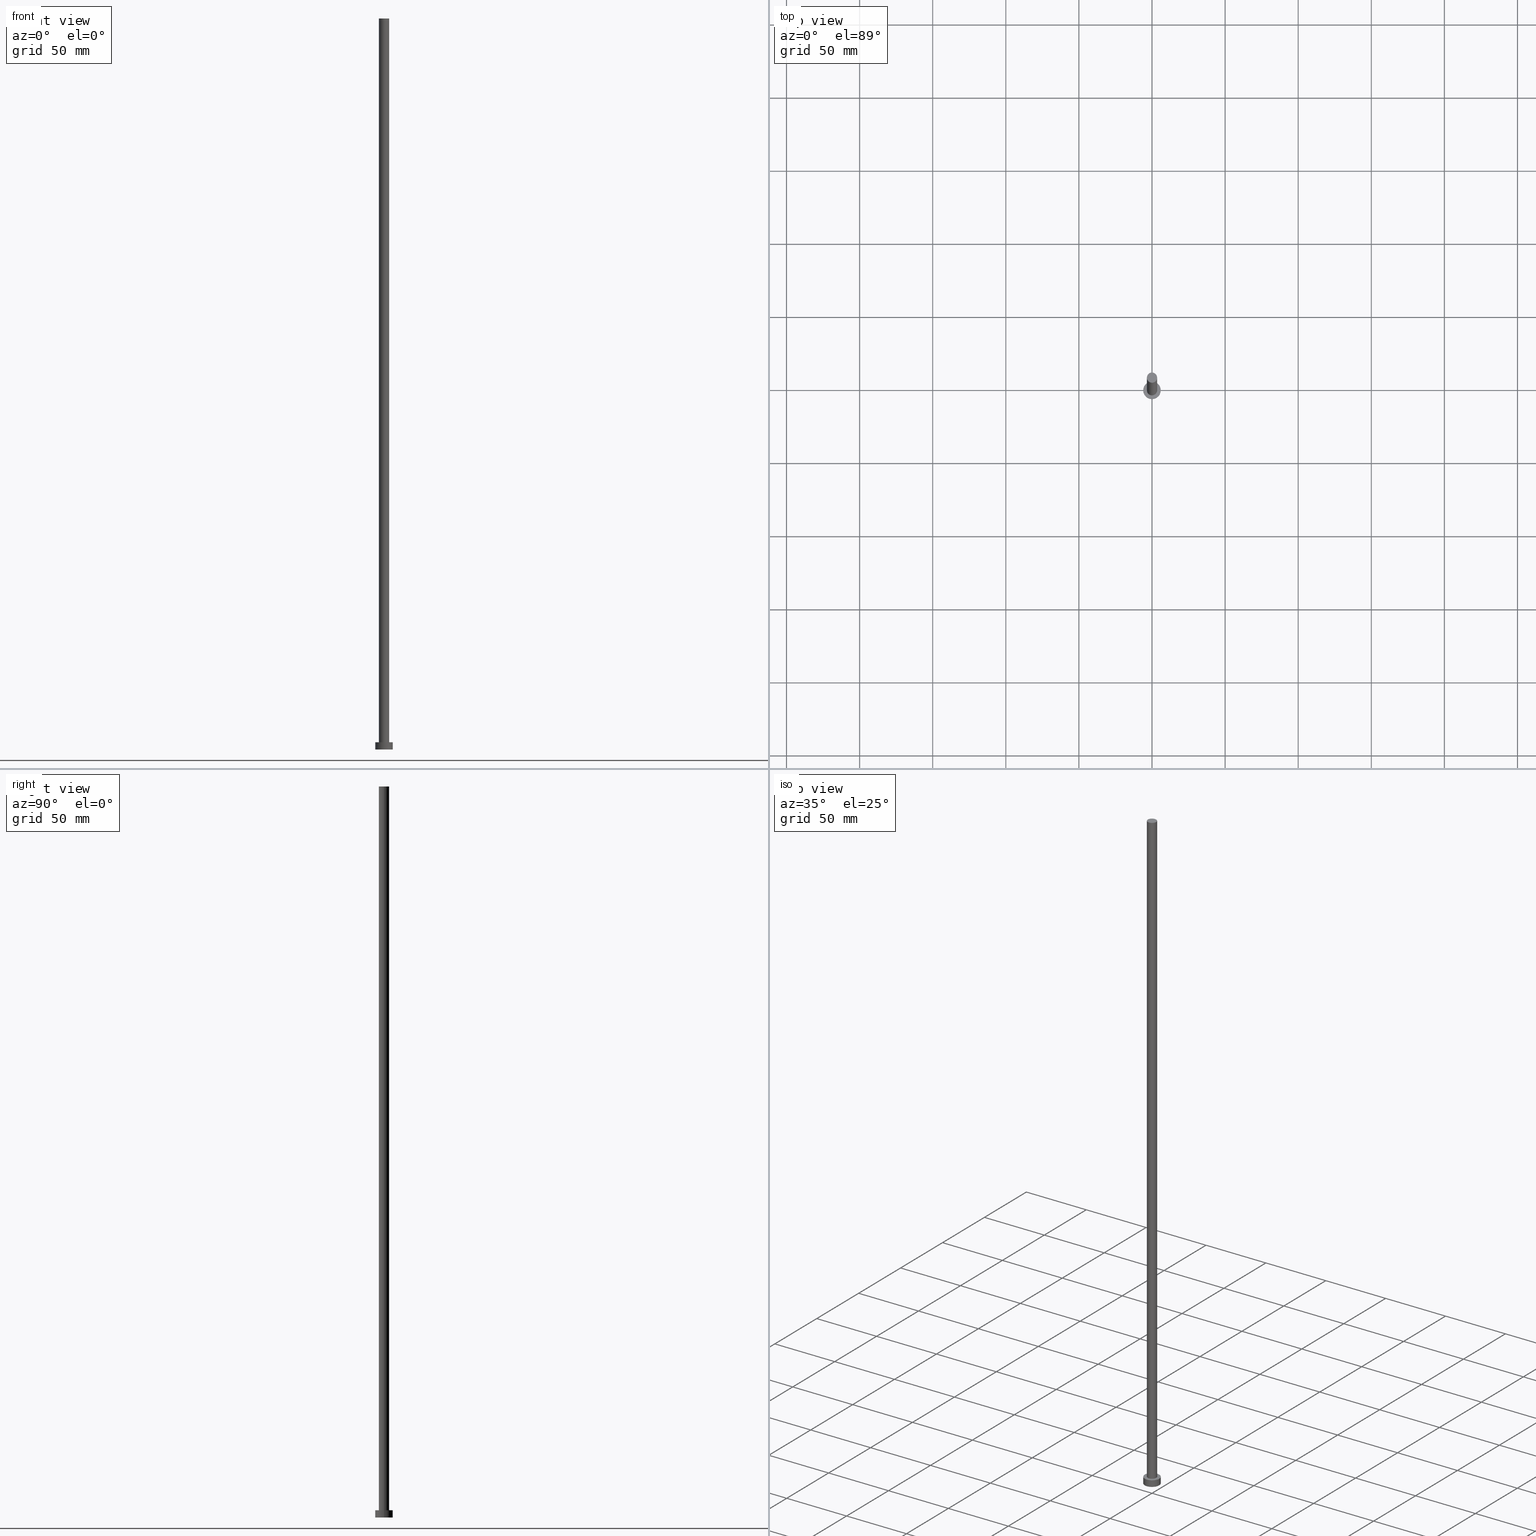
[diagram: canonical four-view strip — front | top / right | iso, engineering-drawing reading convention]
A machine part, canonical four-view strip (front | top / right | iso — engineering-drawing reading convention). The complete STEP part file that produces these views, byte-faithful:
ISO-10303-21;
HEADER;
FILE_DESCRIPTION (( 'STEP AP203' ),
    '1' );
FILE_NAME ('7057.STEP',
    '2026-02-06T12:39:42',
    ( '' ),
    ( '' ),
    'SwSTEP 2.0',
    'SolidWorks 2019',
    '' );
FILE_SCHEMA (( 'CONFIG_CONTROL_DESIGN' ));
ENDSEC;

DATA;
#1 = PLANE ( 'NONE',  #33 ) ;
#2 = CLOSED_SHELL ( 'NONE', ( #46, #175, #185, #170, #142, #118, #211 ) ) ;
#3 = DATE_AND_TIME ( #78, #235 ) ;
#4 = MECHANICAL_CONTEXT ( 'NONE', #204, 'mechanical' ) ;
#5 = EDGE_LOOP ( 'NONE', ( #193, #76 ) ) ;
#6 = APPROVAL_STATUS ( 'not_yet_approved' ) ;
#7 = DATE_AND_TIME ( #29, #205 ) ;
#8 = PRODUCT_DEFINITION ( 'NEZN�M�', '', #232, #15 ) ;
#9 = ORIENTED_EDGE ( 'NONE', *, *, #69, .T. ) ;
#10 = APPROVAL_DATE_TIME ( #187, #225 ) ;
#11 = DIRECTION ( 'NONE',  ( -0.000000000000000000, -0.000000000000000000, -1.000000000000000000 ) ) ;
#12 = APPROVAL_PERSON_ORGANIZATION ( #82, #125, #121 ) ;
#13 = DIRECTION ( 'NONE',  ( -0.000000000000000000, -0.000000000000000000, -1.000000000000000000 ) ) ;
#14 = CARTESIAN_POINT ( 'NONE',  ( 3.500000000000000000, 4.286263797015736595E-16, 500.0000000000000000 ) ) ;
#15 = DESIGN_CONTEXT ( 'detailed design', #89, 'design' ) ;
#16 = DIRECTION ( 'NONE',  ( 1.000000000000000000, 0.000000000000000000, 0.000000000000000000 ) ) ;
#17 = CARTESIAN_POINT ( 'NONE',  ( 0.000000000000000000, 0.000000000000000000, 0.000000000000000000 ) ) ;
#18 = VECTOR ( 'NONE', #105, 1000.000000000000000 ) ;
#19 = DIRECTION ( 'NONE',  ( 0.000000000000000000, 0.000000000000000000, 1.000000000000000000 ) ) ;
#20 = VECTOR ( 'NONE', #38, 1000.000000000000000 ) ;
#21 = DIRECTION ( 'NONE',  ( 0.000000000000000000, 0.000000000000000000, 1.000000000000000000 ) ) ;
#22 = ORIENTED_EDGE ( 'NONE', *, *, #75, .F. ) ;
#23 = VERTEX_POINT ( 'NONE', #203 ) ;
#24 = EDGE_LOOP ( 'NONE', ( #64, #144, #28, #180 ) ) ;
#25 = APPLICATION_PROTOCOL_DEFINITION ( 'international standard', 'config_control_design', 1994, #89 ) ;
#26 = PRODUCT_DEFINITION_SHAPE ( 'NONE', 'NONE',  #8 ) ;
#27 = PERSON_AND_ORGANIZATION ( #156, #247 ) ;
#28 = ORIENTED_EDGE ( 'NONE', *, *, #75, .T. ) ;
#29 = CALENDAR_DATE ( 2026, 6, 2 ) ;
#30 = AXIS2_PLACEMENT_3D ( 'NONE', #124, #131, #190 ) ;
#31 = CARTESIAN_POINT ( 'NONE',  ( 6.000000000000000888, 7.347880794884120722E-16, 5.000000000000000000 ) ) ;
#32 = CYLINDRICAL_SURFACE ( 'NONE', #216, 6.000000000000000888 ) ;
#33 = AXIS2_PLACEMENT_3D ( 'NONE', #40, #19, #111 ) ;
#34 = AXIS2_PLACEMENT_3D ( 'NONE', #220, #115, #48 ) ;
#35 = EDGE_CURVE ( 'NONE', #74, #23, #164, .T. ) ;
#36 = DIRECTION ( 'NONE',  ( 0.000000000000000000, 0.000000000000000000, 1.000000000000000000 ) ) ;
#37 = LINE ( 'NONE', #85, #248 ) ;
#38 = DIRECTION ( 'NONE',  ( -0.000000000000000000, -0.000000000000000000, -1.000000000000000000 ) ) ;
#39 = CARTESIAN_POINT ( 'NONE',  ( -6.000000000000000888, 0.000000000000000000, 5.000000000000000000 ) ) ;
#40 = CARTESIAN_POINT ( 'NONE',  ( 0.000000000000000000, 0.000000000000000000, 500.0000000000000000 ) ) ;
#41 = CC_DESIGN_PERSON_AND_ORGANIZATION_ASSIGNMENT ( #117, #96, ( #186 ) ) ;
#42 = CIRCLE ( 'NONE', #101, 6.000000000000000888 ) ;
#43 = EDGE_LOOP ( 'NONE', ( #138, #44, #171, #155 ) ) ;
#44 = ORIENTED_EDGE ( 'NONE', *, *, #59, .F. ) ;
#45 = DIRECTION ( 'NONE',  ( 0.000000000000000000, 0.000000000000000000, 1.000000000000000000 ) ) ;
#46 = ADVANCED_FACE ( 'NONE', ( #108 ), #206, .T. ) ;
#47 =( LENGTH_UNIT ( ) NAMED_UNIT ( * ) SI_UNIT ( .MILLI., .METRE. ) );
#48 = DIRECTION ( 'NONE',  ( 1.000000000000000000, 0.000000000000000000, 0.000000000000000000 ) ) ;
#49 = COORDINATED_UNIVERSAL_TIME_OFFSET ( 1, 0, .AHEAD. ) ;
#50 = DATE_TIME_ROLE ( 'classification_date' ) ;
#51 = CIRCLE ( 'NONE', #60, 3.500000000000000000 ) ;
#52 = CARTESIAN_POINT ( 'NONE',  ( -6.000000000000000888, 0.000000000000000000, 0.000000000000000000 ) ) ;
#53 = DIRECTION ( 'NONE',  ( 1.000000000000000000, 0.000000000000000000, -0.000000000000000000 ) ) ;
#54 = CARTESIAN_POINT ( 'NONE',  ( 0.000000000000000000, 0.000000000000000000, 500.0000000000000000 ) ) ;
#55 = CARTESIAN_POINT ( 'NONE',  ( 0.000000000000000000, 0.000000000000000000, 5.000000000000000000 ) ) ;
#56 = DIRECTION ( 'NONE',  ( -1.000000000000000000, 0.000000000000000000, 0.000000000000000000 ) ) ;
#57 = EDGE_CURVE ( 'NONE', #99, #214, #150, .T. ) ;
#58 = VERTEX_POINT ( 'NONE', #52 ) ;
#59 = EDGE_CURVE ( 'NONE', #237, #99, #42, .T. ) ;
#60 = AXIS2_PLACEMENT_3D ( 'NONE', #148, #107, #16 ) ;
#61 = APPROVAL_ROLE ( '' ) ;
#62 = CC_DESIGN_PERSON_AND_ORGANIZATION_ASSIGNMENT ( #27, #244, ( #232 ) ) ;
#63 = SECURITY_CLASSIFICATION ( '', '', #241 ) ;
#64 = ORIENTED_EDGE ( 'NONE', *, *, #230, .F. ) ;
#65 = PERSON_AND_ORGANIZATION_ROLE ( 'design_supplier' ) ;
#66 = EDGE_CURVE ( 'NONE', #120, #93, #189, .T. ) ;
#67 = DIRECTION ( 'NONE',  ( 0.000000000000000000, 0.000000000000000000, 1.000000000000000000 ) ) ;
#68 = CARTESIAN_POINT ( 'NONE',  ( 0.000000000000000000, 0.000000000000000000, 500.0000000000000000 ) ) ;
#69 = EDGE_CURVE ( 'NONE', #99, #237, #159, .T. ) ;
#70 = DIRECTION ( 'NONE',  ( -0.000000000000000000, -0.000000000000000000, -1.000000000000000000 ) ) ;
#71 = CARTESIAN_POINT ( 'NONE',  ( 0.000000000000000000, 0.000000000000000000, 5.000000000000000000 ) ) ;
#72 = AXIS2_PLACEMENT_3D ( 'NONE', #234, #113, #195 ) ;
#73 = CARTESIAN_POINT ( 'NONE',  ( -3.500000000000000000, 0.000000000000000000, 500.0000000000000000 ) ) ;
#74 = VERTEX_POINT ( 'NONE', #130 ) ;
#75 = EDGE_CURVE ( 'NONE', #23, #93, #51, .T. ) ;
#76 = ORIENTED_EDGE ( 'NONE', *, *, #230, .T. ) ;
#77 = DIRECTION ( 'NONE',  ( 1.000000000000000000, 0.000000000000000000, 0.000000000000000000 ) ) ;
#78 = CALENDAR_DATE ( 2026, 6, 2 ) ;
#79 = DATE_AND_TIME ( #196, #100 ) ;
#80 = PERSON_AND_ORGANIZATION ( #156, #247 ) ;
#81 = ORIENTED_EDGE ( 'NONE', *, *, #66, .T. ) ;
#82 = PERSON_AND_ORGANIZATION ( #156, #247 ) ;
#83 = SHAPE_DEFINITION_REPRESENTATION ( #26, #229 ) ;
#84 = CYLINDRICAL_SURFACE ( 'NONE', #132, 3.500000000000000000 ) ;
#85 = CARTESIAN_POINT ( 'NONE',  ( -6.000000000000000888, 0.000000000000000000, 5.000000000000000000 ) ) ;
#86 = CC_DESIGN_PERSON_AND_ORGANIZATION_ASSIGNMENT ( #80, #143, ( #8 ) ) ;
#87 = DIRECTION ( 'NONE',  ( 0.000000000000000000, 0.000000000000000000, 1.000000000000000000 ) ) ;
#88 = DIRECTION ( 'NONE',  ( -1.000000000000000000, 0.000000000000000000, 0.000000000000000000 ) ) ;
#89 = APPLICATION_CONTEXT ( 'configuration controlled 3d designs of mechanical parts and assemblies' ) ;
#90 = ORIENTED_EDGE ( 'NONE', *, *, #202, .T. ) ;
#91 = CIRCLE ( 'NONE', #173, 3.500000000000000000 ) ;
#92 = DIRECTION ( 'NONE',  ( 1.000000000000000000, 0.000000000000000000, 0.000000000000000000 ) ) ;
#93 = VERTEX_POINT ( 'NONE', #207 ) ;
#94 = APPROVAL_DATE_TIME ( #198, #125 ) ;
#95 = ORIENTED_EDGE ( 'NONE', *, *, #202, .F. ) ;
#96 = PERSON_AND_ORGANIZATION_ROLE ( 'design_owner' ) ;
#97 =( NAMED_UNIT ( * ) PLANE_ANGLE_UNIT ( ) SI_UNIT ( $, .RADIAN. ) );
#98 = EDGE_CURVE ( 'NONE', #120, #74, #147, .T. ) ;
#99 = VERTEX_POINT ( 'NONE', #246 ) ;
#100 = LOCAL_TIME ( 13, 39, 42.00000000000000000, #221 ) ;
#101 = AXIS2_PLACEMENT_3D ( 'NONE', #149, #87, #127 ) ;
#102 = COORDINATED_UNIVERSAL_TIME_OFFSET ( 1, 0, .AHEAD. ) ;
#103 = DIRECTION ( 'NONE',  ( 1.000000000000000000, 0.000000000000000000, 0.000000000000000000 ) ) ;
#104 = AXIS2_PLACEMENT_3D ( 'NONE', #55, #231, #56 ) ;
#105 = DIRECTION ( 'NONE',  ( -0.000000000000000000, -0.000000000000000000, -1.000000000000000000 ) ) ;
#106 = CIRCLE ( 'NONE', #182, 6.000000000000000888 ) ;
#107 = DIRECTION ( 'NONE',  ( 0.000000000000000000, 0.000000000000000000, 1.000000000000000000 ) ) ;
#108 = FACE_OUTER_BOUND ( 'NONE', #24, .T. ) ;
#109 = FACE_OUTER_BOUND ( 'NONE', #114, .T. ) ;
#110 = CARTESIAN_POINT ( 'NONE',  ( 0.000000000000000000, 0.000000000000000000, 0.000000000000000000 ) ) ;
#111 = DIRECTION ( 'NONE',  ( 1.000000000000000000, 0.000000000000000000, -0.000000000000000000 ) ) ;
#112 = EDGE_LOOP ( 'NONE', ( #136, #183, #90, #153 ) ) ;
#113 = DIRECTION ( 'NONE',  ( 0.000000000000000000, 0.000000000000000000, 1.000000000000000000 ) ) ;
#114 = EDGE_LOOP ( 'NONE', ( #176, #95 ) ) ;
#115 = DIRECTION ( 'NONE',  ( 0.000000000000000000, 0.000000000000000000, 1.000000000000000000 ) ) ;
#116 = ORIENTED_EDGE ( 'NONE', *, *, #219, .F. ) ;
#117 = PERSON_AND_ORGANIZATION ( #156, #247 ) ;
#118 = ADVANCED_FACE ( 'NONE', ( #228 ), #84, .T. ) ;
#119 = CALENDAR_DATE ( 2026, 6, 2 ) ;
#120 = VERTEX_POINT ( 'NONE', #188 ) ;
#121 = APPROVAL_ROLE ( '' ) ;
#122 = LOCAL_TIME ( 13, 39, 42.00000000000000000, #102 ) ;
#123 = PERSON_AND_ORGANIZATION ( #156, #247 ) ;
#124 = CARTESIAN_POINT ( 'NONE',  ( 0.000000000000000000, 0.000000000000000000, 5.000000000000000000 ) ) ;
#125 = APPROVAL ( #218, 'NEUR�EN�' ) ;
#126 = FACE_OUTER_BOUND ( 'NONE', #199, .T. ) ;
#127 = DIRECTION ( 'NONE',  ( 1.000000000000000000, 0.000000000000000000, 0.000000000000000000 ) ) ;
#128 = CC_DESIGN_APPROVAL ( #225, ( #63 ) ) ;
#129 = AXIS2_PLACEMENT_3D ( 'NONE', #249, #70, #208 ) ;
#130 = CARTESIAN_POINT ( 'NONE',  ( 3.500000000000000000, 4.286263797015736595E-16, 500.0000000000000000 ) ) ;
#131 = DIRECTION ( 'NONE',  ( 0.000000000000000000, 0.000000000000000000, 1.000000000000000000 ) ) ;
#132 = AXIS2_PLACEMENT_3D ( 'NONE', #68, #224, #88 ) ;
#133 = DIRECTION ( 'NONE',  ( 0.000000000000000000, 0.000000000000000000, 1.000000000000000000 ) ) ;
#134 = CC_DESIGN_DATE_AND_TIME_ASSIGNMENT ( #79, #157, ( #8 ) ) ;
#135 = UNCERTAINTY_MEASURE_WITH_UNIT (LENGTH_MEASURE( 1.000000000000000082E-05 ), #47, 'distance_accuracy_value', 'NONE');
#136 = ORIENTED_EDGE ( 'NONE', *, *, #69, .F. ) ;
#137 = EDGE_CURVE ( 'NONE', #237, #58, #37, .T. ) ;
#138 = ORIENTED_EDGE ( 'NONE', *, *, #57, .F. ) ;
#139 = APPROVAL_DATE_TIME ( #7, #172 ) ;
#140 = EDGE_LOOP ( 'NONE', ( #116, #22 ) ) ;
#141 = APPROVAL_STATUS ( 'not_yet_approved' ) ;
#142 = ADVANCED_FACE ( 'NONE', ( #109 ), #253, .F. ) ;
#143 = PERSON_AND_ORGANIZATION_ROLE ( 'creator' ) ;
#144 = ORIENTED_EDGE ( 'NONE', *, *, #35, .T. ) ;
#145 = FACE_OUTER_BOUND ( 'NONE', #112, .T. ) ;
#146 = PRODUCT_RELATED_PRODUCT_CATEGORY ( 'detail', '', ( #186 ) ) ;
#147 = CIRCLE ( 'NONE', #177, 3.500000000000000000 ) ;
#148 = CARTESIAN_POINT ( 'NONE',  ( 0.000000000000000000, 0.000000000000000000, 5.000000000000000000 ) ) ;
#149 = CARTESIAN_POINT ( 'NONE',  ( 0.000000000000000000, 0.000000000000000000, 5.000000000000000000 ) ) ;
#150 = LINE ( 'NONE', #31, #20 ) ;
#151 = CYLINDRICAL_SURFACE ( 'NONE', #104, 6.000000000000000888 ) ;
#152 = APPROVAL_PERSON_ORGANIZATION ( #123, #225, #61 ) ;
#153 = ORIENTED_EDGE ( 'NONE', *, *, #137, .F. ) ;
#154 = DIRECTION ( 'NONE',  ( 1.000000000000000000, 0.000000000000000000, 0.000000000000000000 ) ) ;
#155 = ORIENTED_EDGE ( 'NONE', *, *, #243, .T. ) ;
#156 = PERSON ( 'NEUR�EN�', 'NEUR�EN�', 'NEUR�EN�', ('NEUR�EN�'), ('NEUR�EN�'), ('NEUR�EN�') ) ;
#157 = DATE_TIME_ROLE ( 'creation_date' ) ;
#158 =( GEOMETRIC_REPRESENTATION_CONTEXT ( 3 ) GLOBAL_UNCERTAINTY_ASSIGNED_CONTEXT ( ( #135 ) ) GLOBAL_UNIT_ASSIGNED_CONTEXT ( ( #47, #97, #215 ) ) REPRESENTATION_CONTEXT ( 'NONE', 'WORKASPACE' ) );
#159 = CIRCLE ( 'NONE', #30, 6.000000000000000888 ) ;
#160 = PERSON_AND_ORGANIZATION ( #156, #247 ) ;
#161 = ORIENTED_EDGE ( 'NONE', *, *, #219, .T. ) ;
#162 = DIRECTION ( 'NONE',  ( 0.000000000000000000, 0.000000000000000000, 1.000000000000000000 ) ) ;
#163 = CC_DESIGN_APPROVAL ( #125, ( #232 ) ) ;
#164 = LINE ( 'NONE', #14, #236 ) ;
#165 = AXIS2_PLACEMENT_3D ( 'NONE', #17, #162, #53 ) ;
#166 = DIRECTION ( 'NONE',  ( -1.000000000000000000, 0.000000000000000000, 0.000000000000000000 ) ) ;
#167 = DIRECTION ( 'NONE',  ( 1.000000000000000000, 0.000000000000000000, -0.000000000000000000 ) ) ;
#168 = DIRECTION ( 'NONE',  ( -0.000000000000000000, -0.000000000000000000, -1.000000000000000000 ) ) ;
#169 = CC_DESIGN_APPROVAL ( #172, ( #8 ) ) ;
#170 = ADVANCED_FACE ( 'NONE', ( #252, #126 ), #226, .T. ) ;
#171 = ORIENTED_EDGE ( 'NONE', *, *, #137, .T. ) ;
#172 = APPROVAL ( #6, 'NEUR�EN�' ) ;
#173 = AXIS2_PLACEMENT_3D ( 'NONE', #210, #21, #92 ) ;
#174 = LOCAL_TIME ( 13, 39, 42.00000000000000000, #49 ) ;
#175 = ADVANCED_FACE ( 'NONE', ( #145 ), #32, .T. ) ;
#176 = ORIENTED_EDGE ( 'NONE', *, *, #243, .F. ) ;
#177 = AXIS2_PLACEMENT_3D ( 'NONE', #54, #36, #103 ) ;
#178 = PERSON_AND_ORGANIZATION_ROLE ( 'classification_officer' ) ;
#179 = CC_DESIGN_PERSON_AND_ORGANIZATION_ASSIGNMENT ( #160, #178, ( #63 ) ) ;
#180 = ORIENTED_EDGE ( 'NONE', *, *, #66, .F. ) ;
#181 = COORDINATED_UNIVERSAL_TIME_OFFSET ( 1, 0, .AHEAD. ) ;
#182 = AXIS2_PLACEMENT_3D ( 'NONE', #209, #133, #154 ) ;
#183 = ORIENTED_EDGE ( 'NONE', *, *, #57, .T. ) ;
#184 = PERSON_AND_ORGANIZATION ( #156, #247 ) ;
#185 = ADVANCED_FACE ( 'NONE', ( #250 ), #151, .T. ) ;
#186 = PRODUCT ( '7057', '7057', '', ( #4 ) ) ;
#187 = DATE_AND_TIME ( #201, #122 ) ;
#188 = CARTESIAN_POINT ( 'NONE',  ( -3.500000000000000000, 0.000000000000000000, 500.0000000000000000 ) ) ;
#189 = LINE ( 'NONE', #73, #18 ) ;
#190 = DIRECTION ( 'NONE',  ( 1.000000000000000000, 0.000000000000000000, 0.000000000000000000 ) ) ;
#191 = CC_DESIGN_PERSON_AND_ORGANIZATION_ASSIGNMENT ( #239, #65, ( #232 ) ) ;
#192 = CC_DESIGN_SECURITY_CLASSIFICATION ( #63, ( #232 ) ) ;
#193 = ORIENTED_EDGE ( 'NONE', *, *, #98, .T. ) ;
#194 = CARTESIAN_POINT ( 'NONE',  ( 6.000000000000000888, 7.347880794884120722E-16, 0.000000000000000000 ) ) ;
#195 = DIRECTION ( 'NONE',  ( 1.000000000000000000, 0.000000000000000000, 0.000000000000000000 ) ) ;
#196 = CALENDAR_DATE ( 2026, 6, 2 ) ;
#197 = APPLICATION_PROTOCOL_DEFINITION ( 'international standard', 'config_control_design', 1994, #204 ) ;
#198 = DATE_AND_TIME ( #119, #174 ) ;
#199 = EDGE_LOOP ( 'NONE', ( #222, #9 ) ) ;
#200 = APPROVAL_ROLE ( '' ) ;
#201 = CALENDAR_DATE ( 2026, 6, 2 ) ;
#202 = EDGE_CURVE ( 'NONE', #214, #58, #106, .T. ) ;
#203 = CARTESIAN_POINT ( 'NONE',  ( 3.500000000000000000, 4.286263797015736595E-16, 5.000000000000000000 ) ) ;
#204 = APPLICATION_CONTEXT ( 'configuration controlled 3d designs of mechanical parts and assemblies' ) ;
#205 = LOCAL_TIME ( 13, 39, 42.00000000000000000, #181 ) ;
#206 = CYLINDRICAL_SURFACE ( 'NONE', #129, 3.500000000000000000 ) ;
#207 = CARTESIAN_POINT ( 'NONE',  ( -3.500000000000000000, 0.000000000000000000, 5.000000000000000000 ) ) ;
#208 = DIRECTION ( 'NONE',  ( -1.000000000000000000, 0.000000000000000000, 0.000000000000000000 ) ) ;
#209 = CARTESIAN_POINT ( 'NONE',  ( 0.000000000000000000, 0.000000000000000000, 0.000000000000000000 ) ) ;
#210 = CARTESIAN_POINT ( 'NONE',  ( 0.000000000000000000, 0.000000000000000000, 5.000000000000000000 ) ) ;
#211 = ADVANCED_FACE ( 'NONE', ( #212 ), #1, .T. ) ;
#212 = FACE_OUTER_BOUND ( 'NONE', #5, .T. ) ;
#213 = CIRCLE ( 'NONE', #255, 6.000000000000000888 ) ;
#214 = VERTEX_POINT ( 'NONE', #194 ) ;
#215 =( NAMED_UNIT ( * ) SI_UNIT ( $, .STERADIAN. ) SOLID_ANGLE_UNIT ( ) );
#216 = AXIS2_PLACEMENT_3D ( 'NONE', #71, #13, #166 ) ;
#217 = ORIENTED_EDGE ( 'NONE', *, *, #35, .F. ) ;
#218 = APPROVAL_STATUS ( 'not_yet_approved' ) ;
#219 = EDGE_CURVE ( 'NONE', #93, #23, #91, .T. ) ;
#220 = CARTESIAN_POINT ( 'NONE',  ( 0.000000000000000000, 0.000000000000000000, 0.000000000000000000 ) ) ;
#221 = COORDINATED_UNIVERSAL_TIME_OFFSET ( 1, 0, .AHEAD. ) ;
#222 = ORIENTED_EDGE ( 'NONE', *, *, #59, .T. ) ;
#223 = CARTESIAN_POINT ( 'NONE',  ( 0.000000000000000000, 0.000000000000000000, 5.000000000000000000 ) ) ;
#224 = DIRECTION ( 'NONE',  ( -0.000000000000000000, -0.000000000000000000, -1.000000000000000000 ) ) ;
#225 = APPROVAL ( #141, 'NEUR�EN�' ) ;
#226 = PLANE ( 'NONE',  #233 ) ;
#227 = APPROVAL_PERSON_ORGANIZATION ( #184, #172, #200 ) ;
#228 = FACE_OUTER_BOUND ( 'NONE', #254, .T. ) ;
#229 = ADVANCED_BREP_SHAPE_REPRESENTATION ( '7057', ( #251, #34 ), #158 ) ;
#230 = EDGE_CURVE ( 'NONE', #74, #120, #242, .T. ) ;
#231 = DIRECTION ( 'NONE',  ( -0.000000000000000000, -0.000000000000000000, -1.000000000000000000 ) ) ;
#232 = PRODUCT_DEFINITION_FORMATION_WITH_SPECIFIED_SOURCE ( 'LIBOVOLN�', '', #186, .NOT_KNOWN. ) ;
#233 = AXIS2_PLACEMENT_3D ( 'NONE', #223, #67, #167 ) ;
#234 = CARTESIAN_POINT ( 'NONE',  ( 0.000000000000000000, 0.000000000000000000, 500.0000000000000000 ) ) ;
#235 = LOCAL_TIME ( 13, 39, 42.00000000000000000, #245 ) ;
#236 = VECTOR ( 'NONE', #11, 1000.000000000000000 ) ;
#237 = VERTEX_POINT ( 'NONE', #39 ) ;
#238 = CC_DESIGN_DATE_AND_TIME_ASSIGNMENT ( #3, #50, ( #63 ) ) ;
#239 = PERSON_AND_ORGANIZATION ( #156, #247 ) ;
#240 = ORIENTED_EDGE ( 'NONE', *, *, #98, .F. ) ;
#241 = SECURITY_CLASSIFICATION_LEVEL ( 'unclassified' ) ;
#242 = CIRCLE ( 'NONE', #72, 3.500000000000000000 ) ;
#243 = EDGE_CURVE ( 'NONE', #58, #214, #213, .T. ) ;
#244 = PERSON_AND_ORGANIZATION_ROLE ( 'creator' ) ;
#245 = COORDINATED_UNIVERSAL_TIME_OFFSET ( 1, 0, .AHEAD. ) ;
#246 = CARTESIAN_POINT ( 'NONE',  ( 6.000000000000000888, 7.347880794884120722E-16, 5.000000000000000000 ) ) ;
#247 = ORGANIZATION ( 'NEUR�EN�', 'NEUR�EN�', '' ) ;
#248 = VECTOR ( 'NONE', #168, 1000.000000000000000 ) ;
#249 = CARTESIAN_POINT ( 'NONE',  ( 0.000000000000000000, 0.000000000000000000, 500.0000000000000000 ) ) ;
#250 = FACE_OUTER_BOUND ( 'NONE', #43, .T. ) ;
#251 = MANIFOLD_SOLID_BREP ( 'P�idat vysunut�m3', #2 ) ;
#252 = FACE_BOUND ( 'NONE', #140, .T. ) ;
#253 = PLANE ( 'NONE',  #165 ) ;
#254 = EDGE_LOOP ( 'NONE', ( #217, #240, #81, #161 ) ) ;
#255 = AXIS2_PLACEMENT_3D ( 'NONE', #110, #45, #77 ) ;
ENDSEC;
END-ISO-10303-21;
